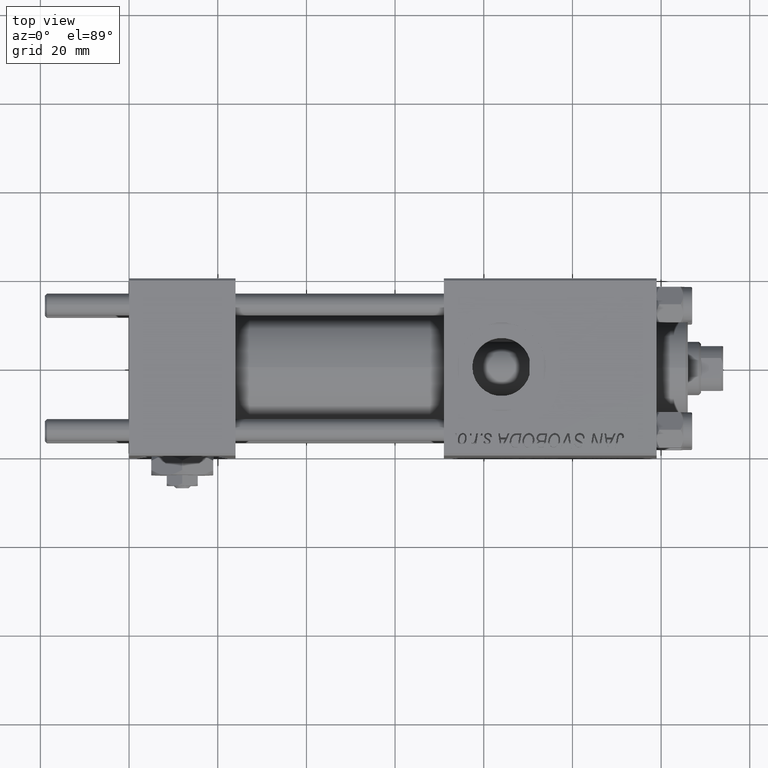
[diagram: clean part render]
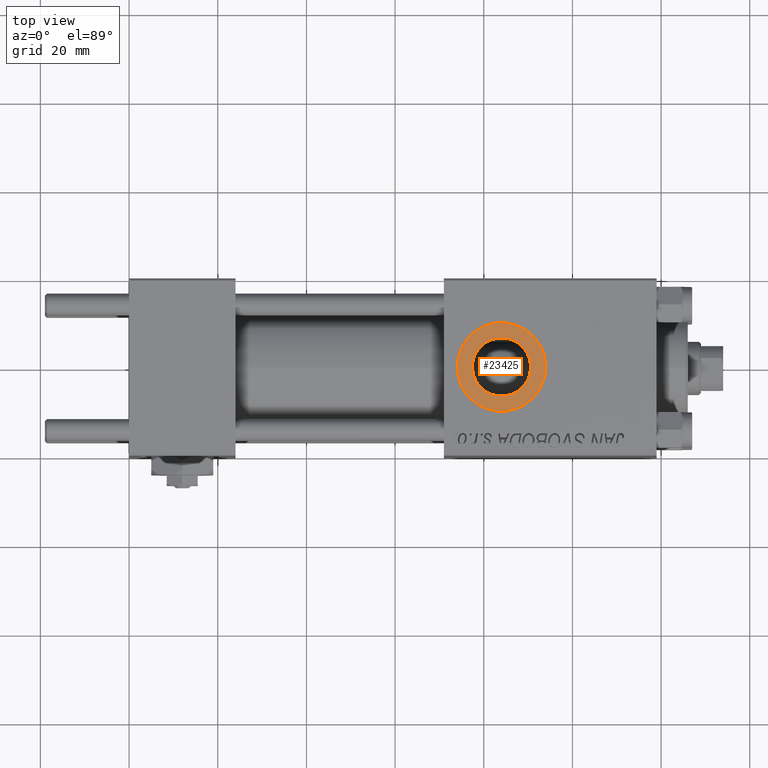
[diagram: same view with one face highlighted and labeled with its STEP entity id]
A machine part, top view. The second image highlights one B-rep face of the part: STEP entity #23425.
In plain terms, the highlighted planar face has unit normal (0, 0, 1).
Its self-contained STEP definition (entity closure, byte-faithful):
#1325 = EDGE_LOOP ( 'NONE', ( #36608, #50453 ) ) ;
#2638 = DIRECTION ( 'NONE',  ( 1.000000000000000000, 0.000000000000000000, 0.000000000000000000 ) ) ;
#3193 = EDGE_CURVE ( 'NONE', #32519, #50520, #26997, .T. ) ;
#3965 = CARTESIAN_POINT ( 'NONE',  ( 74.00000000000160583, -5.100766768294525560E-16, 19.80000000000000071 ) ) ;
#4461 = DIRECTION ( 'NONE',  ( 1.000000000000000000, 0.000000000000000000, 0.000000000000000000 ) ) ;
#7300 = DIRECTION ( 'NONE',  ( 1.000000000000000000, 0.000000000000000000, 0.000000000000000000 ) ) ;
#9421 = AXIS2_PLACEMENT_3D ( 'NONE', #27523, #12186, #43394 ) ;
#10738 = VERTEX_POINT ( 'NONE', #3965 ) ;
#10951 = DIRECTION ( 'NONE',  ( 0.000000000000000000, 0.000000000000000000, 1.000000000000000000 ) ) ;
#12186 = DIRECTION ( 'NONE',  ( 0.000000000000000000, 0.000000000000000000, 1.000000000000000000 ) ) ;
#18641 = AXIS2_PLACEMENT_3D ( 'NONE', #31499, #10951, #7300 ) ;
#18756 = CARTESIAN_POINT ( 'NONE',  ( 84.00000000000162004, -1.734723475976807094E-15, 19.80000000000000071 ) ) ;
#19751 = FACE_BOUND ( 'NONE', #1325, .T. ) ;
#20841 = CARTESIAN_POINT ( 'NONE',  ( 84.00000000000162004, -1.734723475976807094E-15, 19.80000000000000071 ) ) ;
#23425 = ADVANCED_FACE ( 'NONE', ( #19751, #51250 ), #44207, .T. ) ;
#23509 = CIRCLE ( 'NONE', #9421, 10.00000000000000888 ) ;
#24420 = DIRECTION ( 'NONE',  ( 0.000000000000000000, 0.000000000000000000, 1.000000000000000000 ) ) ;
#26337 = ORIENTED_EDGE ( 'NONE', *, *, #36221, .T. ) ;
#26997 = CIRCLE ( 'NONE', #41149, 6.580000000000002736 ) ;
#27523 = CARTESIAN_POINT ( 'NONE',  ( 84.00000000000162004, -1.734723475976806897E-15, 19.80000000000000071 ) ) ;
#29468 = CIRCLE ( 'NONE', #18641, 10.00000000000000888 ) ;
#29515 = EDGE_CURVE ( 'NONE', #50520, #32519, #29783, .T. ) ;
#29783 = CIRCLE ( 'NONE', #36424, 6.580000000000002736 ) ;
#31499 = CARTESIAN_POINT ( 'NONE',  ( 84.00000000000162004, -1.734723475976806897E-15, 19.80000000000000071 ) ) ;
#31676 = CARTESIAN_POINT ( 'NONE',  ( 77.42000000000160753, -1.734723475976807094E-15, 19.80000000000000071 ) ) ;
#32519 = VERTEX_POINT ( 'NONE', #43697 ) ;
#34293 = ORIENTED_EDGE ( 'NONE', *, *, #42898, .T. ) ;
#36221 = EDGE_CURVE ( 'NONE', #45233, #10738, #23509, .T. ) ;
#36406 = CARTESIAN_POINT ( 'NONE',  ( 84.00000000000162004, -1.734723475976806897E-15, 19.80000000000000071 ) ) ;
#36424 = AXIS2_PLACEMENT_3D ( 'NONE', #18756, #38295, #2638 ) ;
#36608 = ORIENTED_EDGE ( 'NONE', *, *, #29515, .T. ) ;
#37932 = CARTESIAN_POINT ( 'NONE',  ( 94.00000000000162004, -1.734723475976806897E-15, 19.80000000000000071 ) ) ;
#38005 = AXIS2_PLACEMENT_3D ( 'NONE', #36406, #24420, #40311 ) ;
#38295 = DIRECTION ( 'NONE',  ( -0.000000000000000000, -0.000000000000000000, -1.000000000000000000 ) ) ;
#40311 = DIRECTION ( 'NONE',  ( 1.000000000000000000, 0.000000000000000000, -0.000000000000000000 ) ) ;
#40379 = DIRECTION ( 'NONE',  ( -0.000000000000000000, -0.000000000000000000, -1.000000000000000000 ) ) ;
#41149 = AXIS2_PLACEMENT_3D ( 'NONE', #20841, #40379, #4461 ) ;
#42898 = EDGE_CURVE ( 'NONE', #10738, #45233, #29468, .T. ) ;
#43394 = DIRECTION ( 'NONE',  ( 1.000000000000000000, 0.000000000000000000, 0.000000000000000000 ) ) ;
#43697 = CARTESIAN_POINT ( 'NONE',  ( 90.58000000000161833, -9.289058821378484469E-16, 19.80000000000000071 ) ) ;
#44207 = PLANE ( 'NONE',  #38005 ) ;
#45233 = VERTEX_POINT ( 'NONE', #37932 ) ;
#50040 = EDGE_LOOP ( 'NONE', ( #26337, #34293 ) ) ;
#50453 = ORIENTED_EDGE ( 'NONE', *, *, #3193, .T. ) ;
#50520 = VERTEX_POINT ( 'NONE', #31676 ) ;
#51250 = FACE_OUTER_BOUND ( 'NONE', #50040, .T. ) ;